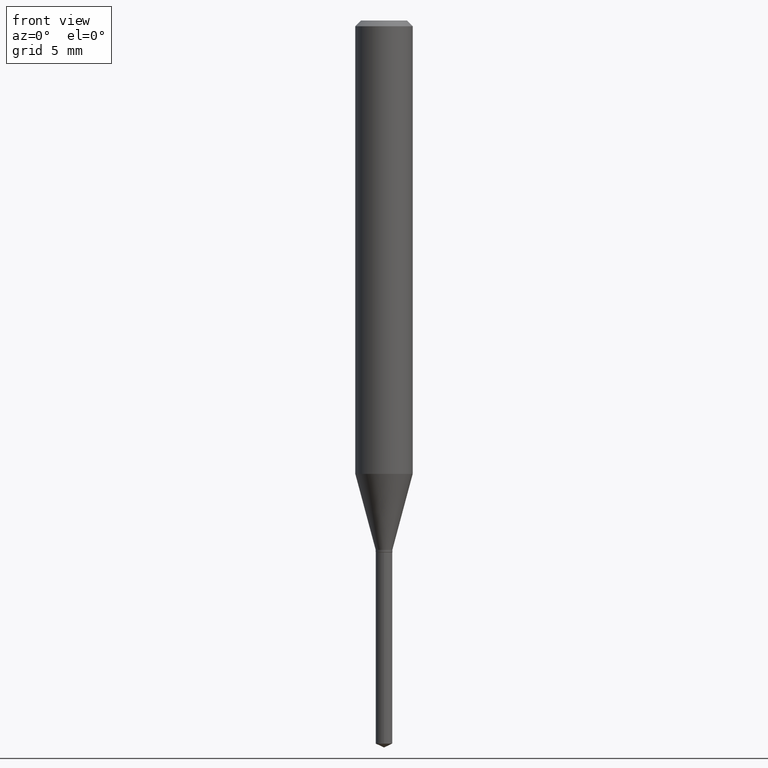
[diagram: clean part render]
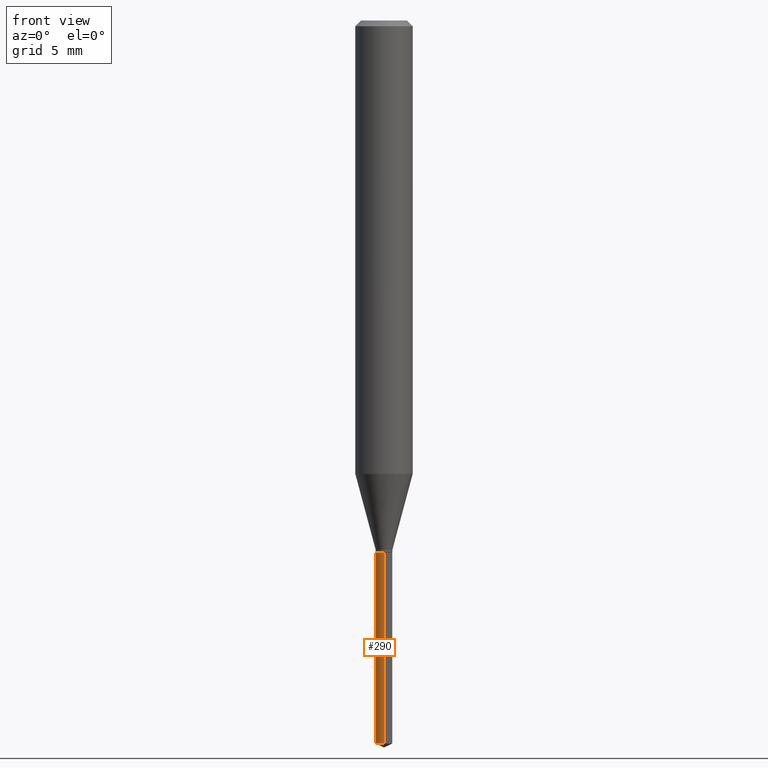
[diagram: same view with one face highlighted and labeled with its STEP entity id]
A machine part, front view. The second image highlights one B-rep face of the part: STEP entity #290.
In plain terms, the highlighted cylindrical surface (edge-blend (fillet) strip) has radius 0.4356 mm, axis along (-0, 0, 1).
Its self-contained STEP definition (entity closure, byte-faithful):
#10 = VECTOR ( 'NONE', #247, 39.37007874015748143 ) ;
#23 = CARTESIAN_POINT ( 'NONE',  ( 1.218580791828936073E-16, 0.01714999999999617525, -1.094499999999999806 ) ) ;
#25 = EDGE_CURVE ( 'NONE', #46, #85, #487, .T. ) ;
#46 = VERTEX_POINT ( 'NONE', #412 ) ;
#56 = FACE_OUTER_BOUND ( 'NONE', #192, .T. ) ;
#64 = EDGE_CURVE ( 'NONE', #357, #243, #136, .T. ) ;
#85 = VERTEX_POINT ( 'NONE', #372 ) ;
#130 = AXIS2_PLACEMENT_3D ( 'NONE', #193, #277, #200 ) ;
#132 = EDGE_CURVE ( 'NONE', #243, #85, #176, .T. ) ;
#133 = AXIS2_PLACEMENT_3D ( 'NONE', #219, #149, #391 ) ;
#136 = LINE ( 'NONE', #367, #10 ) ;
#144 = ORIENTED_EDGE ( 'NONE', *, *, #64, .F. ) ;
#149 = DIRECTION ( 'NONE',  ( -2.445470214571802116E-29, 3.491479321953280158E-15, 1.000000000000000000 ) ) ;
#155 = CARTESIAN_POINT ( 'NONE',  ( 2.676565608369631794E-29, -3.821426325363822773E-15, -1.094499999999999806 ) ) ;
#162 = ORIENTED_EDGE ( 'NONE', *, *, #132, .F. ) ;
#176 = CIRCLE ( 'NONE', #133, 0.01714999999999999858 ) ;
#181 = ORIENTED_EDGE ( 'NONE', *, *, #246, .T. ) ;
#192 = EDGE_LOOP ( 'NONE', ( #144, #181, #475, #162 ) ) ;
#193 = CARTESIAN_POINT ( 'NONE',  ( 3.639109590007979236E-29, -5.195682445244359530E-15, -1.488102823662641683 ) ) ;
#200 = DIRECTION ( 'NONE',  ( -6.982962677686266711E-15, -1.000000000000000000, 0.000000000000000000 ) ) ;
#201 = DIRECTION ( 'NONE',  ( -6.982962677686266711E-15, -1.000000000000000000, 0.000000000000000000 ) ) ;
#215 = AXIS2_PLACEMENT_3D ( 'NONE', #155, #400, #201 ) ;
#219 = CARTESIAN_POINT ( 'NONE',  ( 2.676565608369631794E-29, -3.821426325363822773E-15, -1.094499999999999806 ) ) ;
#243 = VERTEX_POINT ( 'NONE', #23 ) ;
#246 = EDGE_CURVE ( 'NONE', #357, #46, #338, .T. ) ;
#247 = DIRECTION ( 'NONE',  ( -2.445470214571802396E-29, 3.491479321953280158E-15, 1.000000000000000000 ) ) ;
#250 = CARTESIAN_POINT ( 'NONE',  ( -1.197578099222926869E-16, -0.01715000000000382191, -1.094499999999999806 ) ) ;
#277 = DIRECTION ( 'NONE',  ( -2.445470214571802116E-29, 3.491479321953280158E-15, 1.000000000000000000 ) ) ;
#290 = ADVANCED_FACE ( 'NONE', ( #56 ), #360, .T. ) ;
#324 = CARTESIAN_POINT ( 'NONE',  ( 1.218580791828935333E-16, 0.01714999999999479788, -1.488102823662641683 ) ) ;
#338 = CIRCLE ( 'NONE', #130, 0.01714999999999999858 ) ;
#349 = VECTOR ( 'NONE', #408, 39.37007874015748143 ) ;
#357 = VERTEX_POINT ( 'NONE', #324 ) ;
#360 = CYLINDRICAL_SURFACE ( 'NONE', #215, 0.01714999999999999858 ) ;
#367 = CARTESIAN_POINT ( 'NONE',  ( 1.218580791828839191E-16, 0.01714999999999617525, -1.094499999999999806 ) ) ;
#372 = CARTESIAN_POINT ( 'NONE',  ( -1.197578099222926869E-16, -0.01715000000000382191, -1.094499999999999806 ) ) ;
#391 = DIRECTION ( 'NONE',  ( -6.982962677686266711E-15, -1.000000000000000000, 0.000000000000000000 ) ) ;
#400 = DIRECTION ( 'NONE',  ( -2.445470214571802116E-29, 3.491479321953280158E-15, 1.000000000000000000 ) ) ;
#408 = DIRECTION ( 'NONE',  ( -2.445470214571802396E-29, 3.491479321953280158E-15, 1.000000000000000000 ) ) ;
#412 = CARTESIAN_POINT ( 'NONE',  ( -1.197578099222830234E-16, -0.01715000000000518887, -1.488102823662641683 ) ) ;
#475 = ORIENTED_EDGE ( 'NONE', *, *, #25, .T. ) ;
#487 = LINE ( 'NONE', #250, #349 ) ;